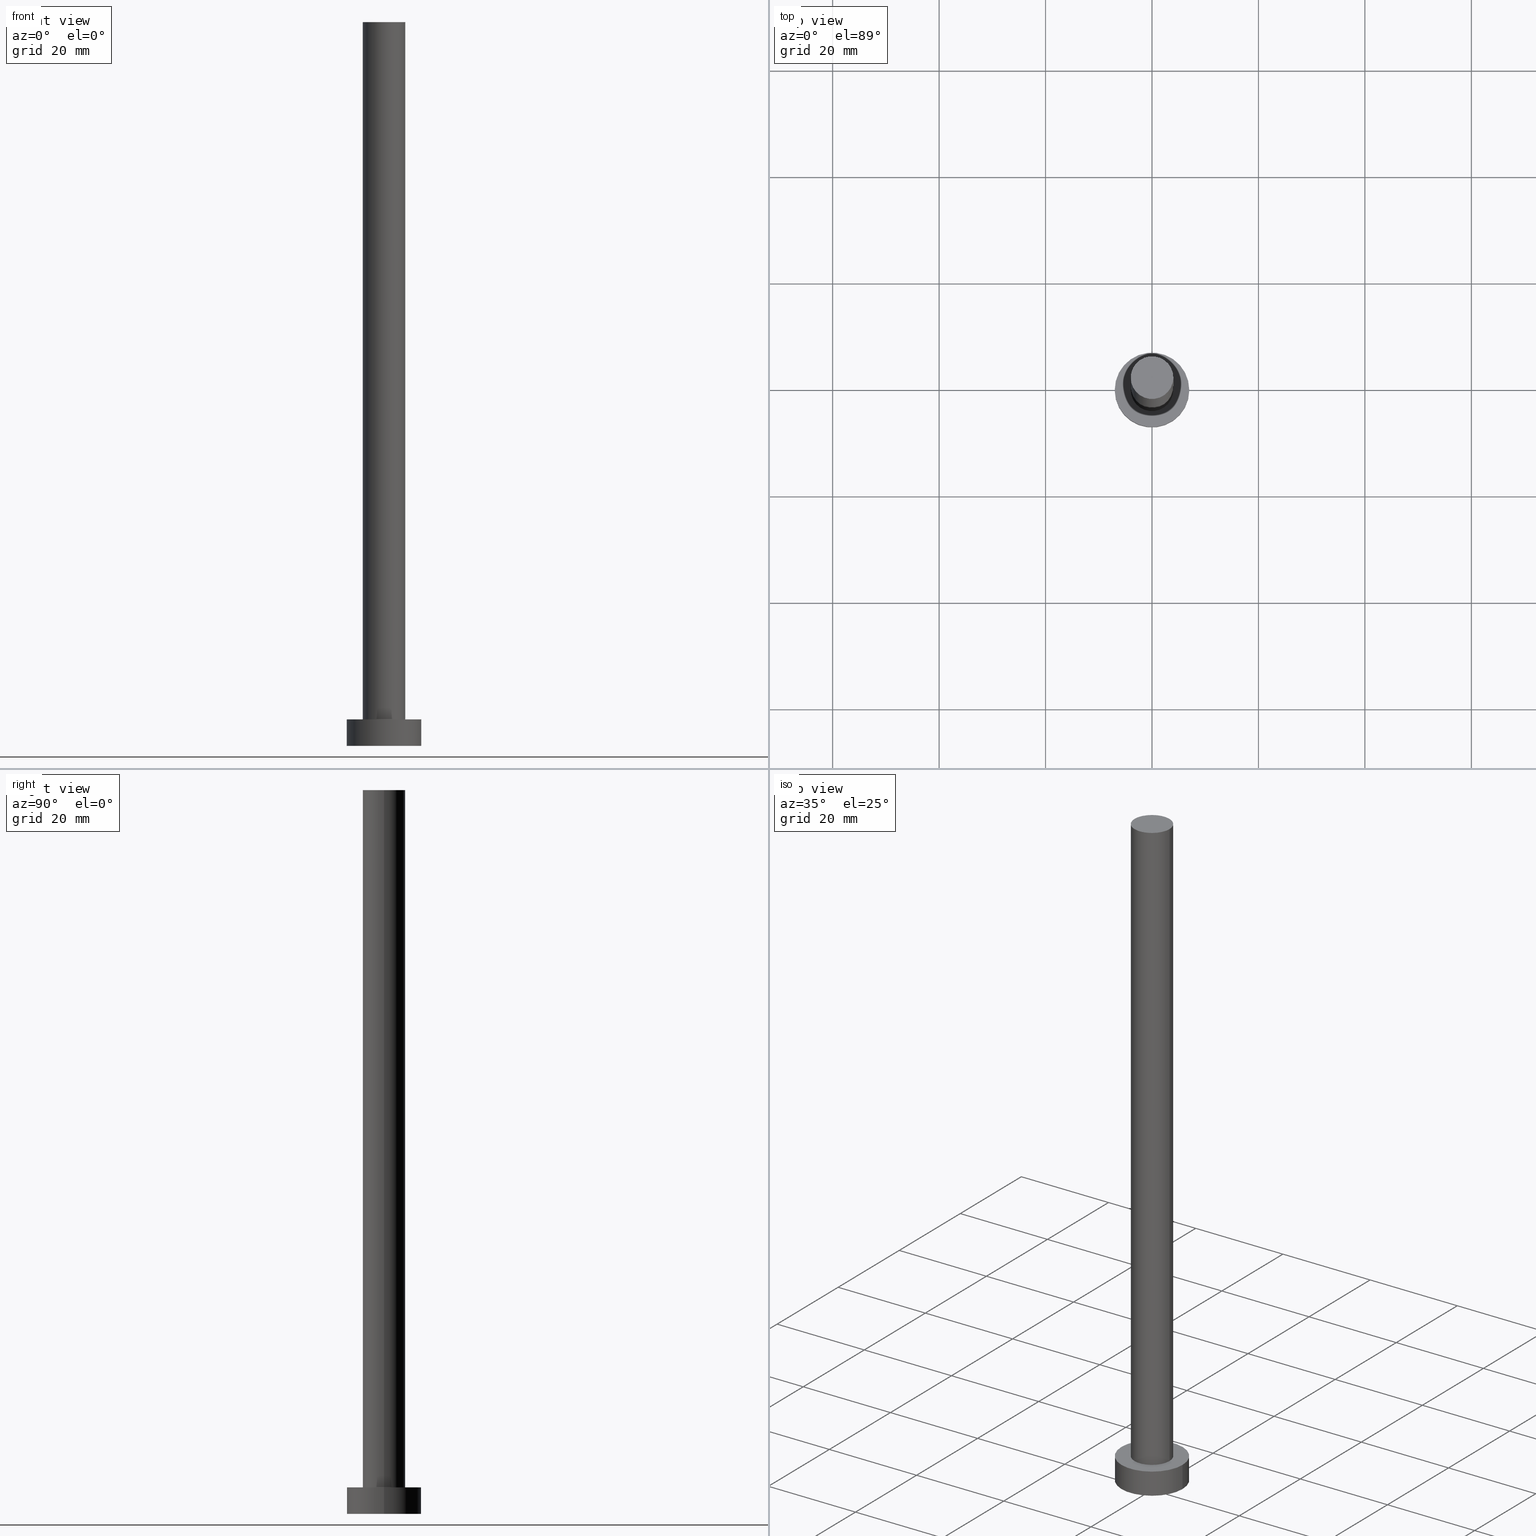
[diagram: canonical four-view strip — front | top / right | iso, engineering-drawing reading convention]
A machine part, canonical four-view strip (front | top / right | iso — engineering-drawing reading convention). The complete STEP part file that produces these views, byte-faithful:
ISO-10303-21;
HEADER;
FILE_DESCRIPTION (( 'STEP AP203' ),
    '1' );
FILE_NAME ('1479.STEP',
    '2023-09-27T12:20:25',
    ( '' ),
    ( '' ),
    'SwSTEP 2.0',
    'SolidWorks 2019',
    '' );
FILE_SCHEMA (( 'CONFIG_CONTROL_DESIGN' ));
ENDSEC;

DATA;
#1 = AXIS2_PLACEMENT_3D ( 'NONE', #81, #155, #57 ) ;
#2 = CARTESIAN_POINT ( 'NONE',  ( -4.000000000000000000, 0.000000000000000000, 136.0000000000000000 ) ) ;
#3 = CC_DESIGN_PERSON_AND_ORGANIZATION_ASSIGNMENT ( #132, #170, ( #70 ) ) ;
#4 = FACE_OUTER_BOUND ( 'NONE', #220, .T. ) ;
#5 = DIRECTION ( 'NONE',  ( 1.000000000000000000, 0.000000000000000000, 0.000000000000000000 ) ) ;
#6 = CARTESIAN_POINT ( 'NONE',  ( 0.000000000000000000, 0.000000000000000000, 136.0000000000000000 ) ) ;
#7 = APPLICATION_CONTEXT ( 'configuration controlled 3d designs of mechanical parts and assemblies' ) ;
#8 = AXIS2_PLACEMENT_3D ( 'NONE', #203, #163, #200 ) ;
#9 = CARTESIAN_POINT ( 'NONE',  ( 0.000000000000000000, 0.000000000000000000, 136.0000000000000000 ) ) ;
#10 = CARTESIAN_POINT ( 'NONE',  ( 7.000000000000000000, 8.572527594031473190E-16, 5.000000000000000000 ) ) ;
#11 =( GEOMETRIC_REPRESENTATION_CONTEXT ( 3 ) GLOBAL_UNCERTAINTY_ASSIGNED_CONTEXT ( ( #117 ) ) GLOBAL_UNIT_ASSIGNED_CONTEXT ( ( #228, #127, #128 ) ) REPRESENTATION_CONTEXT ( 'NONE', 'WORKASPACE' ) );
#12 = PERSON_AND_ORGANIZATION ( #100, #221 ) ;
#13 = APPROVAL_ROLE ( '' ) ;
#14 = COORDINATED_UNIVERSAL_TIME_OFFSET ( 1, 0, .AHEAD. ) ;
#15 = ORIENTED_EDGE ( 'NONE', *, *, #227, .F. ) ;
#16 = EDGE_LOOP ( 'NONE', ( #104, #226, #131, #236 ) ) ;
#17 = DIRECTION ( 'NONE',  ( 0.000000000000000000, 0.000000000000000000, 1.000000000000000000 ) ) ;
#18 = ORIENTED_EDGE ( 'NONE', *, *, #231, .F. ) ;
#19 = CARTESIAN_POINT ( 'NONE',  ( 0.000000000000000000, 0.000000000000000000, 5.000000000000000000 ) ) ;
#20 = AXIS2_PLACEMENT_3D ( 'NONE', #181, #242, #66 ) ;
#21 = CYLINDRICAL_SURFACE ( 'NONE', #50, 7.000000000000000000 ) ;
#22 = DATE_AND_TIME ( #160, #234 ) ;
#23 = FACE_OUTER_BOUND ( 'NONE', #59, .T. ) ;
#24 = CC_DESIGN_PERSON_AND_ORGANIZATION_ASSIGNMENT ( #79, #252, ( #197 ) ) ;
#25 = DIRECTION ( 'NONE',  ( 1.000000000000000000, 0.000000000000000000, 0.000000000000000000 ) ) ;
#26 = DIRECTION ( 'NONE',  ( -0.000000000000000000, -0.000000000000000000, -1.000000000000000000 ) ) ;
#27 = AXIS2_PLACEMENT_3D ( 'NONE', #225, #44, #148 ) ;
#28 = CYLINDRICAL_SURFACE ( 'NONE', #191, 7.000000000000000000 ) ;
#29 = VERTEX_POINT ( 'NONE', #96 ) ;
#30 = ORIENTED_EDGE ( 'NONE', *, *, #246, .T. ) ;
#31 = VECTOR ( 'NONE', #190, 1000.000000000000000 ) ;
#32 = APPROVAL_ROLE ( '' ) ;
#33 = PRODUCT_RELATED_PRODUCT_CATEGORY ( 'detail', '', ( #125 ) ) ;
#34 = CALENDAR_DATE ( 2023, 27, 9 ) ;
#35 = APPROVAL_STATUS ( 'not_yet_approved' ) ;
#36 = EDGE_CURVE ( 'NONE', #137, #42, #213, .T. ) ;
#37 = LINE ( 'NONE', #2, #215 ) ;
#38 = ORIENTED_EDGE ( 'NONE', *, *, #97, .F. ) ;
#39 = VERTEX_POINT ( 'NONE', #174 ) ;
#40 = DIRECTION ( 'NONE',  ( 1.000000000000000000, 0.000000000000000000, -0.000000000000000000 ) ) ;
#41 = AXIS2_PLACEMENT_3D ( 'NONE', #82, #251, #178 ) ;
#42 = VERTEX_POINT ( 'NONE', #119 ) ;
#43 = CARTESIAN_POINT ( 'NONE',  ( 0.000000000000000000, 0.000000000000000000, 5.000000000000000000 ) ) ;
#44 = DIRECTION ( 'NONE',  ( 0.000000000000000000, 0.000000000000000000, 1.000000000000000000 ) ) ;
#45 = ORIENTED_EDGE ( 'NONE', *, *, #253, .T. ) ;
#46 = CARTESIAN_POINT ( 'NONE',  ( 0.000000000000000000, 0.000000000000000000, 5.000000000000000000 ) ) ;
#47 = LOCAL_TIME ( 14, 20, 25.00000000000000000, #209 ) ;
#48 = DIRECTION ( 'NONE',  ( 0.000000000000000000, 0.000000000000000000, 1.000000000000000000 ) ) ;
#49 = ORIENTED_EDGE ( 'NONE', *, *, #107, .F. ) ;
#50 = AXIS2_PLACEMENT_3D ( 'NONE', #19, #192, #217 ) ;
#51 = APPROVAL_STATUS ( 'not_yet_approved' ) ;
#52 = DATE_AND_TIME ( #90, #189 ) ;
#53 = AXIS2_PLACEMENT_3D ( 'NONE', #9, #48, #130 ) ;
#54 = APPROVAL_STATUS ( 'not_yet_approved' ) ;
#55 = DATE_AND_TIME ( #229, #85 ) ;
#56 = ORIENTED_EDGE ( 'NONE', *, *, #76, .T. ) ;
#57 = DIRECTION ( 'NONE',  ( 1.000000000000000000, 0.000000000000000000, -0.000000000000000000 ) ) ;
#58 = CIRCLE ( 'NONE', #8, 7.000000000000000000 ) ;
#59 = EDGE_LOOP ( 'NONE', ( #162, #30 ) ) ;
#60 = CC_DESIGN_DATE_AND_TIME_ASSIGNMENT ( #52, #150, ( #184 ) ) ;
#61 = APPLICATION_CONTEXT ( 'configuration controlled 3d designs of mechanical parts and assemblies' ) ;
#62 = ORIENTED_EDGE ( 'NONE', *, *, #246, .F. ) ;
#63 = SHAPE_DEFINITION_REPRESENTATION ( #159, #115 ) ;
#64 = CC_DESIGN_PERSON_AND_ORGANIZATION_ASSIGNMENT ( #12, #151, ( #184 ) ) ;
#65 = DIRECTION ( 'NONE',  ( 1.000000000000000000, 0.000000000000000000, -0.000000000000000000 ) ) ;
#66 = DIRECTION ( 'NONE',  ( 1.000000000000000000, 0.000000000000000000, 0.000000000000000000 ) ) ;
#67 = EDGE_LOOP ( 'NONE', ( #114, #18 ) ) ;
#68 = AXIS2_PLACEMENT_3D ( 'NONE', #46, #139, #25 ) ;
#69 = ORIENTED_EDGE ( 'NONE', *, *, #231, .T. ) ;
#70 = SECURITY_CLASSIFICATION ( '', '', #235 ) ;
#71 = ADVANCED_FACE ( 'NONE', ( #198, #23 ), #172, .T. ) ;
#72 = VECTOR ( 'NONE', #195, 1000.000000000000000 ) ;
#73 = DATE_AND_TIME ( #77, #47 ) ;
#74 = DATE_TIME_ROLE ( 'classification_date' ) ;
#75 = CARTESIAN_POINT ( 'NONE',  ( 0.000000000000000000, 0.000000000000000000, 0.000000000000000000 ) ) ;
#76 = EDGE_CURVE ( 'NONE', #243, #93, #37, .T. ) ;
#77 = CALENDAR_DATE ( 2023, 27, 9 ) ;
#78 = AXIS2_PLACEMENT_3D ( 'NONE', #75, #17, #149 ) ;
#79 = PERSON_AND_ORGANIZATION ( #100, #221 ) ;
#80 = LINE ( 'NONE', #175, #144 ) ;
#81 = CARTESIAN_POINT ( 'NONE',  ( 0.000000000000000000, 0.000000000000000000, 0.000000000000000000 ) ) ;
#82 = CARTESIAN_POINT ( 'NONE',  ( 0.000000000000000000, 0.000000000000000000, 136.0000000000000000 ) ) ;
#83 = ADVANCED_FACE ( 'NONE', ( #99 ), #21, .T. ) ;
#84 = CIRCLE ( 'NONE', #41, 4.000000000000000000 ) ;
#85 = LOCAL_TIME ( 14, 20, 25.00000000000000000, #14 ) ;
#86 = CYLINDRICAL_SURFACE ( 'NONE', #206, 4.000000000000000000 ) ;
#87 = CARTESIAN_POINT ( 'NONE',  ( 0.000000000000000000, 0.000000000000000000, 136.0000000000000000 ) ) ;
#88 = APPROVAL_ROLE ( '' ) ;
#89 = CIRCLE ( 'NONE', #27, 4.000000000000000000 ) ;
#90 = CALENDAR_DATE ( 2023, 27, 9 ) ;
#91 = EDGE_CURVE ( 'NONE', #243, #196, #84, .T. ) ;
#92 = PERSON_AND_ORGANIZATION ( #100, #221 ) ;
#93 = VERTEX_POINT ( 'NONE', #156 ) ;
#94 = EDGE_LOOP ( 'NONE', ( #38, #136, #56, #222 ) ) ;
#95 = CIRCLE ( 'NONE', #20, 7.000000000000000000 ) ;
#96 = CARTESIAN_POINT ( 'NONE',  ( 4.000000000000000000, 4.898587196589412829E-16, 5.000000000000000000 ) ) ;
#97 = EDGE_CURVE ( 'NONE', #196, #29, #80, .T. ) ;
#98 = CARTESIAN_POINT ( 'NONE',  ( 4.000000000000000000, 4.898587196589412829E-16, 136.0000000000000000 ) ) ;
#99 = FACE_OUTER_BOUND ( 'NONE', #108, .T. ) ;
#100 = PERSON ( 'NEUR�EN�', 'NEUR�EN�', 'NEUR�EN�', ('NEUR�EN�'), ('NEUR�EN�'), ('NEUR�EN�') ) ;
#101 = DIRECTION ( 'NONE',  ( 0.000000000000000000, 0.000000000000000000, 1.000000000000000000 ) ) ;
#102 = DIRECTION ( 'NONE',  ( -1.000000000000000000, 0.000000000000000000, 0.000000000000000000 ) ) ;
#103 = ADVANCED_FACE ( 'NONE', ( #4 ), #86, .T. ) ;
#104 = ORIENTED_EDGE ( 'NONE', *, *, #36, .F. ) ;
#105 = FACE_OUTER_BOUND ( 'NONE', #16, .T. ) ;
#106 = APPROVAL_PERSON_ORGANIZATION ( #230, #153, #32 ) ;
#107 = EDGE_CURVE ( 'NONE', #122, #39, #158, .T. ) ;
#108 = EDGE_LOOP ( 'NONE', ( #62, #165, #69, #49 ) ) ;
#109 = CIRCLE ( 'NONE', #177, 7.000000000000000000 ) ;
#110 = PERSON_AND_ORGANIZATION ( #100, #221 ) ;
#111 = MANIFOLD_SOLID_BREP ( 'P�idat vysunut�m3', #211 ) ;
#112 = DIRECTION ( 'NONE',  ( -1.000000000000000000, 0.000000000000000000, 0.000000000000000000 ) ) ;
#113 = ADVANCED_FACE ( 'NONE', ( #239 ), #254, .F. ) ;
#114 = ORIENTED_EDGE ( 'NONE', *, *, #224, .F. ) ;
#115 = ADVANCED_BREP_SHAPE_REPRESENTATION ( '1479', ( #111, #78 ), #11 ) ;
#116 = ORIENTED_EDGE ( 'NONE', *, *, #97, .T. ) ;
#117 = UNCERTAINTY_MEASURE_WITH_UNIT (LENGTH_MEASURE( 1.000000000000000082E-05 ), #228, 'distance_accuracy_value', 'NONE');
#118 = ORIENTED_EDGE ( 'NONE', *, *, #76, .F. ) ;
#119 = CARTESIAN_POINT ( 'NONE',  ( 7.000000000000000000, 8.572527594031473190E-16, 0.000000000000000000 ) ) ;
#120 = CARTESIAN_POINT ( 'NONE',  ( 0.000000000000000000, 0.000000000000000000, 136.0000000000000000 ) ) ;
#121 = CARTESIAN_POINT ( 'NONE',  ( -4.000000000000000000, 0.000000000000000000, 136.0000000000000000 ) ) ;
#122 = VERTEX_POINT ( 'NONE', #214 ) ;
#123 = CC_DESIGN_APPROVAL ( #135, ( #197 ) ) ;
#124 = EDGE_LOOP ( 'NONE', ( #15, #202 ) ) ;
#125 = PRODUCT ( '1479', '1479', '', ( #187 ) ) ;
#126 = ADVANCED_FACE ( 'NONE', ( #105 ), #28, .T. ) ;
#127 =( NAMED_UNIT ( * ) PLANE_ANGLE_UNIT ( ) SI_UNIT ( $, .RADIAN. ) );
#128 =( NAMED_UNIT ( * ) SI_UNIT ( $, .STERADIAN. ) SOLID_ANGLE_UNIT ( ) );
#129 = APPROVAL_DATE_TIME ( #55, #135 ) ;
#130 = DIRECTION ( 'NONE',  ( 1.000000000000000000, 0.000000000000000000, 0.000000000000000000 ) ) ;
#131 = ORIENTED_EDGE ( 'NONE', *, *, #107, .T. ) ;
#132 = PERSON_AND_ORGANIZATION ( #100, #221 ) ;
#133 = CARTESIAN_POINT ( 'NONE',  ( -7.000000000000000000, 0.000000000000000000, 5.000000000000000000 ) ) ;
#134 = CARTESIAN_POINT ( 'NONE',  ( 7.000000000000000000, 8.572527594031473190E-16, 5.000000000000000000 ) ) ;
#135 = APPROVAL ( #54, 'NEUR�EN�' ) ;
#136 = ORIENTED_EDGE ( 'NONE', *, *, #91, .F. ) ;
#137 = VERTEX_POINT ( 'NONE', #10 ) ;
#138 = CIRCLE ( 'NONE', #53, 4.000000000000000000 ) ;
#139 = DIRECTION ( 'NONE',  ( 0.000000000000000000, 0.000000000000000000, 1.000000000000000000 ) ) ;
#140 = APPROVAL_PERSON_ORGANIZATION ( #92, #135, #13 ) ;
#141 = FACE_OUTER_BOUND ( 'NONE', #94, .T. ) ;
#142 = CYLINDRICAL_SURFACE ( 'NONE', #168, 4.000000000000000000 ) ;
#143 = ORIENTED_EDGE ( 'NONE', *, *, #146, .T. ) ;
#144 = VECTOR ( 'NONE', #154, 1000.000000000000000 ) ;
#145 = ORIENTED_EDGE ( 'NONE', *, *, #253, .F. ) ;
#146 = EDGE_CURVE ( 'NONE', #29, #93, #89, .T. ) ;
#147 = DATE_AND_TIME ( #34, #250 ) ;
#148 = DIRECTION ( 'NONE',  ( 1.000000000000000000, 0.000000000000000000, 0.000000000000000000 ) ) ;
#149 = DIRECTION ( 'NONE',  ( 1.000000000000000000, 0.000000000000000000, 0.000000000000000000 ) ) ;
#150 = DATE_TIME_ROLE ( 'creation_date' ) ;
#151 = PERSON_AND_ORGANIZATION_ROLE ( 'creator' ) ;
#152 = APPROVAL_PERSON_ORGANIZATION ( #233, #186, #88 ) ;
#153 = APPROVAL ( #51, 'NEUR�EN�' ) ;
#154 = DIRECTION ( 'NONE',  ( -0.000000000000000000, -0.000000000000000000, -1.000000000000000000 ) ) ;
#155 = DIRECTION ( 'NONE',  ( 0.000000000000000000, 0.000000000000000000, 1.000000000000000000 ) ) ;
#156 = CARTESIAN_POINT ( 'NONE',  ( -4.000000000000000000, 0.000000000000000000, 5.000000000000000000 ) ) ;
#157 = DIRECTION ( 'NONE',  ( -0.000000000000000000, -0.000000000000000000, -1.000000000000000000 ) ) ;
#158 = LINE ( 'NONE', #133, #31 ) ;
#159 = PRODUCT_DEFINITION_SHAPE ( 'NONE', 'NONE',  #184 ) ;
#160 = CALENDAR_DATE ( 2023, 27, 9 ) ;
#161 = ADVANCED_FACE ( 'NONE', ( #204 ), #180, .T. ) ;
#162 = ORIENTED_EDGE ( 'NONE', *, *, #216, .T. ) ;
#163 = DIRECTION ( 'NONE',  ( 0.000000000000000000, 0.000000000000000000, 1.000000000000000000 ) ) ;
#164 = DIRECTION ( 'NONE',  ( 0.000000000000000000, 0.000000000000000000, 1.000000000000000000 ) ) ;
#165 = ORIENTED_EDGE ( 'NONE', *, *, #36, .T. ) ;
#166 = AXIS2_PLACEMENT_3D ( 'NONE', #43, #101, #183 ) ;
#167 = CC_DESIGN_APPROVAL ( #186, ( #70 ) ) ;
#168 = AXIS2_PLACEMENT_3D ( 'NONE', #120, #26, #102 ) ;
#169 = APPROVAL_DATE_TIME ( #147, #153 ) ;
#170 = PERSON_AND_ORGANIZATION_ROLE ( 'classification_officer' ) ;
#171 = CIRCLE ( 'NONE', #68, 4.000000000000000000 ) ;
#172 = PLANE ( 'NONE',  #188 ) ;
#173 = COORDINATED_UNIVERSAL_TIME_OFFSET ( 1, 0, .AHEAD. ) ;
#174 = CARTESIAN_POINT ( 'NONE',  ( -7.000000000000000000, 0.000000000000000000, 0.000000000000000000 ) ) ;
#175 = CARTESIAN_POINT ( 'NONE',  ( 4.000000000000000000, 4.898587196589412829E-16, 136.0000000000000000 ) ) ;
#176 = ADVANCED_FACE ( 'NONE', ( #141 ), #142, .T. ) ;
#177 = AXIS2_PLACEMENT_3D ( 'NONE', #179, #164, #5 ) ;
#178 = DIRECTION ( 'NONE',  ( 1.000000000000000000, 0.000000000000000000, 0.000000000000000000 ) ) ;
#179 = CARTESIAN_POINT ( 'NONE',  ( 0.000000000000000000, 0.000000000000000000, 0.000000000000000000 ) ) ;
#180 = PLANE ( 'NONE',  #223 ) ;
#181 = CARTESIAN_POINT ( 'NONE',  ( 0.000000000000000000, 0.000000000000000000, 0.000000000000000000 ) ) ;
#182 = CARTESIAN_POINT ( 'NONE',  ( 0.000000000000000000, 0.000000000000000000, 5.000000000000000000 ) ) ;
#183 = DIRECTION ( 'NONE',  ( 1.000000000000000000, 0.000000000000000000, 0.000000000000000000 ) ) ;
#184 = PRODUCT_DEFINITION ( 'NEZN�M�', '', #197, #218 ) ;
#185 = DIRECTION ( 'NONE',  ( -1.000000000000000000, 0.000000000000000000, 0.000000000000000000 ) ) ;
#186 = APPROVAL ( #35, 'NEUR�EN�' ) ;
#187 = MECHANICAL_CONTEXT ( 'NONE', #61, 'mechanical' ) ;
#188 = AXIS2_PLACEMENT_3D ( 'NONE', #238, #219, #40 ) ;
#189 = LOCAL_TIME ( 14, 20, 25.00000000000000000, #232 ) ;
#190 = DIRECTION ( 'NONE',  ( -0.000000000000000000, -0.000000000000000000, -1.000000000000000000 ) ) ;
#191 = AXIS2_PLACEMENT_3D ( 'NONE', #182, #244, #185 ) ;
#192 = DIRECTION ( 'NONE',  ( -0.000000000000000000, -0.000000000000000000, -1.000000000000000000 ) ) ;
#193 = COORDINATED_UNIVERSAL_TIME_OFFSET ( 1, 0, .AHEAD. ) ;
#194 = CC_DESIGN_PERSON_AND_ORGANIZATION_ASSIGNMENT ( #110, #208, ( #197 ) ) ;
#195 = DIRECTION ( 'NONE',  ( -0.000000000000000000, -0.000000000000000000, -1.000000000000000000 ) ) ;
#196 = VERTEX_POINT ( 'NONE', #98 ) ;
#197 = PRODUCT_DEFINITION_FORMATION_WITH_SPECIFIED_SOURCE ( 'LIBOVOLN�', '', #125, .NOT_KNOWN. ) ;
#198 = FACE_BOUND ( 'NONE', #124, .T. ) ;
#199 = CC_DESIGN_PERSON_AND_ORGANIZATION_ASSIGNMENT ( #248, #247, ( #125 ) ) ;
#200 = DIRECTION ( 'NONE',  ( 1.000000000000000000, 0.000000000000000000, 0.000000000000000000 ) ) ;
#201 = CC_DESIGN_APPROVAL ( #153, ( #184 ) ) ;
#202 = ORIENTED_EDGE ( 'NONE', *, *, #146, .F. ) ;
#203 = CARTESIAN_POINT ( 'NONE',  ( 0.000000000000000000, 0.000000000000000000, 5.000000000000000000 ) ) ;
#204 = FACE_OUTER_BOUND ( 'NONE', #255, .T. ) ;
#205 = APPLICATION_PROTOCOL_DEFINITION ( 'international standard', 'config_control_design', 1994, #7 ) ;
#206 = AXIS2_PLACEMENT_3D ( 'NONE', #87, #157, #112 ) ;
#207 = APPLICATION_PROTOCOL_DEFINITION ( 'international standard', 'config_control_design', 1994, #61 ) ;
#208 = PERSON_AND_ORGANIZATION_ROLE ( 'design_supplier' ) ;
#209 = COORDINATED_UNIVERSAL_TIME_OFFSET ( 1, 0, .AHEAD. ) ;
#210 = CC_DESIGN_DATE_AND_TIME_ASSIGNMENT ( #73, #74, ( #70 ) ) ;
#211 = CLOSED_SHELL ( 'NONE', ( #103, #83, #126, #71, #113, #176, #161 ) ) ;
#212 = CC_DESIGN_SECURITY_CLASSIFICATION ( #70, ( #197 ) ) ;
#213 = LINE ( 'NONE', #134, #72 ) ;
#214 = CARTESIAN_POINT ( 'NONE',  ( -7.000000000000000000, 0.000000000000000000, 5.000000000000000000 ) ) ;
#215 = VECTOR ( 'NONE', #237, 1000.000000000000000 ) ;
#216 = EDGE_CURVE ( 'NONE', #122, #137, #58, .T. ) ;
#217 = DIRECTION ( 'NONE',  ( -1.000000000000000000, 0.000000000000000000, 0.000000000000000000 ) ) ;
#218 = DESIGN_CONTEXT ( 'detailed design', #7, 'design' ) ;
#219 = DIRECTION ( 'NONE',  ( 0.000000000000000000, 0.000000000000000000, 1.000000000000000000 ) ) ;
#220 = EDGE_LOOP ( 'NONE', ( #145, #116, #143, #118 ) ) ;
#221 = ORGANIZATION ( 'NEUR�EN�', 'NEUR�EN�', '' ) ;
#222 = ORIENTED_EDGE ( 'NONE', *, *, #227, .T. ) ;
#223 = AXIS2_PLACEMENT_3D ( 'NONE', #6, #241, #65 ) ;
#224 = EDGE_CURVE ( 'NONE', #39, #42, #109, .T. ) ;
#225 = CARTESIAN_POINT ( 'NONE',  ( 0.000000000000000000, 0.000000000000000000, 5.000000000000000000 ) ) ;
#226 = ORIENTED_EDGE ( 'NONE', *, *, #216, .F. ) ;
#227 = EDGE_CURVE ( 'NONE', #93, #29, #171, .T. ) ;
#228 =( LENGTH_UNIT ( ) NAMED_UNIT ( * ) SI_UNIT ( .MILLI., .METRE. ) );
#229 = CALENDAR_DATE ( 2023, 27, 9 ) ;
#230 = PERSON_AND_ORGANIZATION ( #100, #221 ) ;
#231 = EDGE_CURVE ( 'NONE', #42, #39, #95, .T. ) ;
#232 = COORDINATED_UNIVERSAL_TIME_OFFSET ( 1, 0, .AHEAD. ) ;
#233 = PERSON_AND_ORGANIZATION ( #100, #221 ) ;
#234 = LOCAL_TIME ( 14, 20, 25.00000000000000000, #193 ) ;
#235 = SECURITY_CLASSIFICATION_LEVEL ( 'unclassified' ) ;
#236 = ORIENTED_EDGE ( 'NONE', *, *, #224, .T. ) ;
#237 = DIRECTION ( 'NONE',  ( -0.000000000000000000, -0.000000000000000000, -1.000000000000000000 ) ) ;
#238 = CARTESIAN_POINT ( 'NONE',  ( 0.000000000000000000, 0.000000000000000000, 5.000000000000000000 ) ) ;
#239 = FACE_OUTER_BOUND ( 'NONE', #67, .T. ) ;
#240 = APPROVAL_DATE_TIME ( #22, #186 ) ;
#241 = DIRECTION ( 'NONE',  ( 0.000000000000000000, 0.000000000000000000, 1.000000000000000000 ) ) ;
#242 = DIRECTION ( 'NONE',  ( 0.000000000000000000, 0.000000000000000000, 1.000000000000000000 ) ) ;
#243 = VERTEX_POINT ( 'NONE', #121 ) ;
#244 = DIRECTION ( 'NONE',  ( -0.000000000000000000, -0.000000000000000000, -1.000000000000000000 ) ) ;
#245 = CIRCLE ( 'NONE', #166, 7.000000000000000000 ) ;
#246 = EDGE_CURVE ( 'NONE', #137, #122, #245, .T. ) ;
#247 = PERSON_AND_ORGANIZATION_ROLE ( 'design_owner' ) ;
#248 = PERSON_AND_ORGANIZATION ( #100, #221 ) ;
#249 = ORIENTED_EDGE ( 'NONE', *, *, #91, .T. ) ;
#250 = LOCAL_TIME ( 14, 20, 25.00000000000000000, #173 ) ;
#251 = DIRECTION ( 'NONE',  ( 0.000000000000000000, 0.000000000000000000, 1.000000000000000000 ) ) ;
#252 = PERSON_AND_ORGANIZATION_ROLE ( 'creator' ) ;
#253 = EDGE_CURVE ( 'NONE', #196, #243, #138, .T. ) ;
#254 = PLANE ( 'NONE',  #1 ) ;
#255 = EDGE_LOOP ( 'NONE', ( #249, #45 ) ) ;
ENDSEC;
END-ISO-10303-21;
